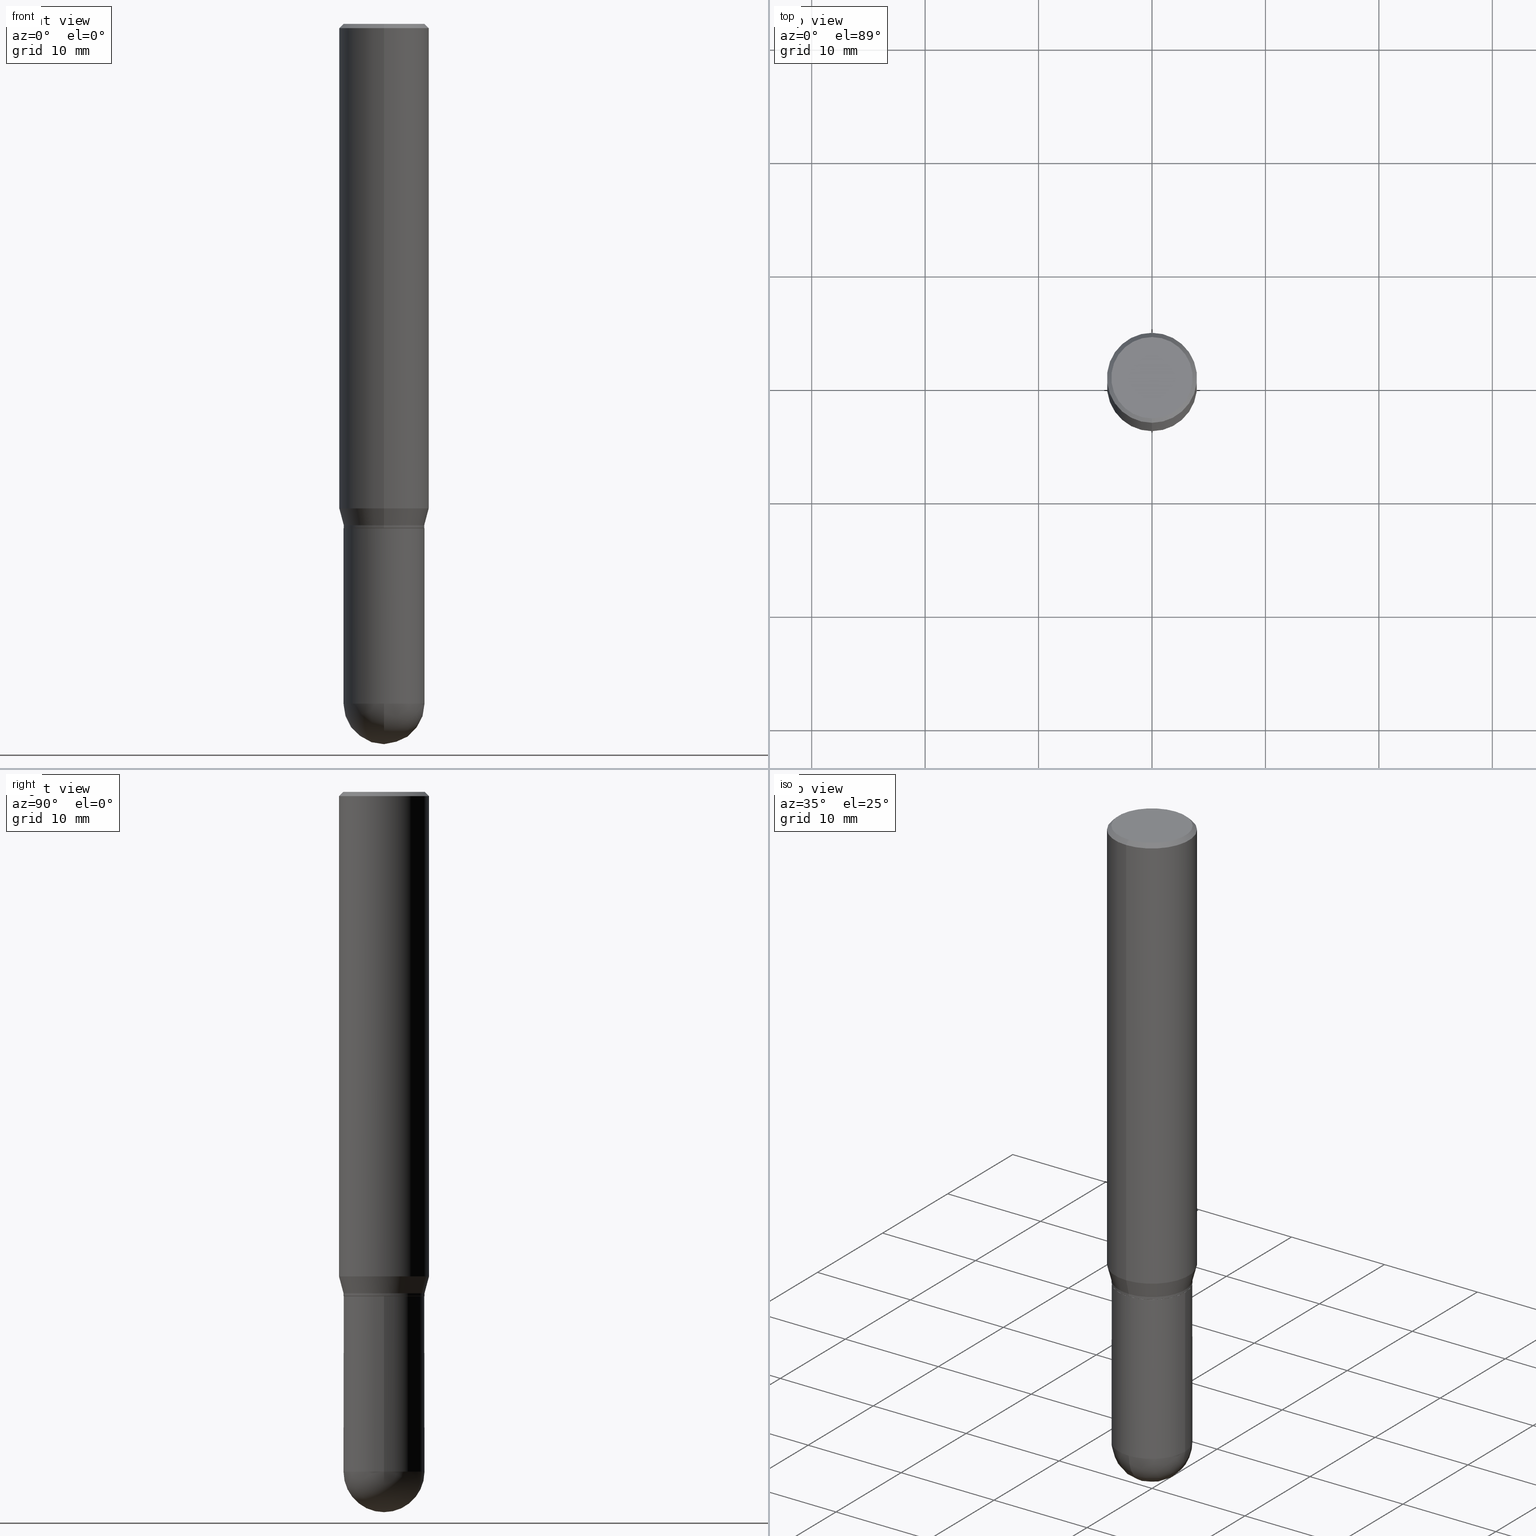
[diagram: canonical four-view strip — front | top / right | iso, engineering-drawing reading convention]
A machine part, canonical four-view strip (front | top / right | iso — engineering-drawing reading convention). The complete STEP part file that produces these views, byte-faithful:
ISO-10303-21;
HEADER;
FILE_DESCRIPTION (( 'STEP AP203' ),
    '1' );
FILE_NAME ('30336.STEP',
    '2024-03-08T15:22:05',
    ( '' ),
    ( '' ),
    'SwSTEP 2.0',
    'SolidWorks 2023',
    '' );
FILE_SCHEMA (( 'CONFIG_CONTROL_DESIGN' ));
ENDSEC;

DATA;
#1 = DIRECTION ( 'NONE',  ( -2.445468806185136597E-29, 3.491481338843145583E-15, 1.000000000000000000 ) ) ;
#2 = CARTESIAN_POINT ( 'NONE',  ( -1.130838019233645980E-45, 1.614692892681366548E-31, 4.624440648553888013E-17 ) ) ;
#3 = DIRECTION ( 'NONE',  ( -6.982962677686265133E-15, -1.000000000000000000, 3.496765431890256920E-15 ) ) ;
#4 = DIRECTION ( 'NONE',  ( 6.982962677686265133E-15, 1.000000000000000000, -3.496765431890256920E-15 ) ) ;
#5 = VERTEX_POINT ( 'NONE', #21 ) ;
#6 = AXIS2_PLACEMENT_3D ( 'NONE', #109, #380, #19 ) ;
#7 = EDGE_LOOP ( 'NONE', ( #476, #379, #26, #219 ) ) ;
#8 = DIRECTION ( 'NONE',  ( -2.445350919548012662E-29, 3.491650159217197762E-15, 1.000000000000000000 ) ) ;
#9 = DIRECTION ( 'NONE',  ( 2.438088387897960049E-29, -3.491481338843145188E-15, -1.000000000000000000 ) ) ;
#10 = DIRECTION ( 'NONE',  ( -6.982962677686265133E-15, -1.000000000000000000, 3.496765431890256920E-15 ) ) ;
#11 = CIRCLE ( 'NONE', #312, 0.1406000000000000305 ) ;
#12 = AXIS2_PLACEMENT_3D ( 'NONE', #504, #216, #428 ) ;
#13 = EDGE_LOOP ( 'NONE', ( #204, #456, #158, #462, #98 ) ) ;
#14 = COORDINATED_UNIVERSAL_TIME_OFFSET ( 5, 0, .BEHIND. ) ;
#15 = EDGE_CURVE ( 'NONE', #271, #255, #182, .T. ) ;
#16 = DIRECTION ( 'NONE',  ( 5.024295867788147587E-15, 0.7071067811865620056, 0.7071067811865330288 ) ) ;
#17 = AXIS2_PLACEMENT_3D ( 'NONE', #241, #198, #364 ) ;
#18 = ORIENTED_EDGE ( 'NONE', *, *, #247, .T. ) ;
#19 = DIRECTION ( 'NONE',  ( -6.982962677686266711E-15, -1.000000000000000000, 3.491650159217198551E-15 ) ) ;
#20 = DIRECTION ( 'NONE',  ( -6.982962677686265922E-15, -1.000000000000000000, 3.899854380677035588E-15 ) ) ;
#21 = CARTESIAN_POINT ( 'NONE',  ( -9.818045524826451268E-16, -0.1406000000000059702, -1.749499999999999833 ) ) ;
#22 = CONICAL_SURFACE ( 'NONE', #233, 0.1562500000000000000, 0.7853981633974485010 ) ;
#23 = EDGE_CURVE ( 'NONE', #416, #292, #442, .T. ) ;
#24 = DIRECTION ( 'NONE',  ( -4.937700262164631661E-15, -0.7071067811865571207, 0.7071067811865379138 ) ) ;
#25 = DIRECTION ( 'NONE',  ( -2.445350919548012662E-29, 3.491650159217197762E-15, 1.000000000000000000 ) ) ;
#26 = ORIENTED_EDGE ( 'NONE', *, *, #325, .T. ) ;
#27 = PERSON_AND_ORGANIZATION ( #210, #38 ) ;
#28 = DIRECTION ( 'NONE',  ( -2.445350919548012662E-29, 3.491650159217197762E-15, 1.000000000000000000 ) ) ;
#29 = ORIENTED_EDGE ( 'NONE', *, *, #301, .T. ) ;
#30 = ADVANCED_FACE ( 'NONE', ( #141 ), #32, .T. ) ;
#31 = DIRECTION ( 'NONE',  ( -2.445350919548012662E-29, 3.491650159217197762E-15, 1.000000000000000000 ) ) ;
#32 = CYLINDRICAL_SURFACE ( 'NONE', #287, 0.1562500000000000000 ) ;
#33 = AXIS2_PLACEMENT_3D ( 'NONE', #455, #291, #20 ) ;
#34 = CARTESIAN_POINT ( 'NONE',  ( 5.769839101313211634E-29, -8.237801070866517629E-15, -2.359399999999999942 ) ) ;
#35 = APPROVAL ( #191, 'UNSPECIFIED' ) ;
#36 = DIRECTION ( 'NONE',  ( -2.445350919548012662E-29, 3.491650159217197762E-15, 1.000000000000000000 ) ) ;
#37 = CARTESIAN_POINT ( 'NONE',  ( 0.000000000000000000, 0.000000000000000000, 0.000000000000000000 ) ) ;
#38 = ORGANIZATION ( 'UNSPECIFIED', 'UNSPECIFIED', '' ) ;
#39 = CARTESIAN_POINT ( 'NONE',  ( -9.783130711438031058E-16, -0.1401000000000061085, -1.749999999999999556 ) ) ;
#40 = CYLINDRICAL_SURFACE ( 'NONE', #454, 0.1406000000000000028 ) ;
#41 = EDGE_CURVE ( 'NONE', #416, #62, #432, .T. ) ;
#42 = DATE_AND_TIME ( #394, #316 ) ;
#43 = DIRECTION ( 'NONE',  ( -6.982962677686265133E-15, -1.000000000000000000, 3.885985766236507752E-15 ) ) ;
#44 = CARTESIAN_POINT ( 'NONE',  ( -1.130838019233645980E-45, 1.614692892681366548E-31, 4.624440648553888013E-17 ) ) ;
#45 = VERTEX_POINT ( 'NONE', #173 ) ;
#46 = AXIS2_PLACEMENT_3D ( 'NONE', #236, #485, #321 ) ;
#47 = DIRECTION ( 'NONE',  ( -7.105427357601001859E-15, -1.000000000000000000, 0.000000000000000000 ) ) ;
#48 = EDGE_CURVE ( 'NONE', #328, #292, #112, .T. ) ;
#49 = DIRECTION ( 'NONE',  ( -2.445350919548012662E-29, 3.491650159217197762E-15, 1.000000000000000000 ) ) ;
#50 = DIRECTION ( 'NONE',  ( -1.000000000000000000, 6.982962677686265922E-15, -4.876176775795935793E-29 ) ) ;
#51 = CIRCLE ( 'NONE', #366, 0.1412499999999999867 ) ;
#52 = ORIENTED_EDGE ( 'NONE', *, *, #41, .T. ) ;
#53 = DIMENSIONAL_EXPONENTS ( 1.000000000000000000, 0.000000000000000000, 0.000000000000000000, 0.000000000000000000, 0.000000000000000000, 0.000000000000000000, 0.000000000000000000 ) ;
#54 = APPROVAL_STATUS ( 'not_yet_approved' ) ;
#55 = LINE ( 'NONE', #140, #237 ) ;
#56 = ORIENTED_EDGE ( 'NONE', *, *, #48, .F. ) ;
#57 = PERSON_AND_ORGANIZATION_ROLE ( 'creator' ) ;
#58 = CARTESIAN_POINT ( 'NONE',  ( -1.020499077168515012E-15, -0.1412499999999999867, 5.394399914749680895E-16 ) ) ;
#59 = AXIS2_PLACEMENT_3D ( 'NONE', #279, #87, #47 ) ;
#60 = ORIENTED_EDGE ( 'NONE', *, *, #180, .F. ) ;
#61 = CC_DESIGN_PERSON_AND_ORGANIZATION_ASSIGNMENT ( #212, #105, ( #91 ) ) ;
#62 = VERTEX_POINT ( 'NONE', #317 ) ;
#63 = PERSON_AND_ORGANIZATION ( #210, #38 ) ;
#64 = ORIENTED_EDGE ( 'NONE', *, *, #498, .T. ) ;
#65 = EDGE_CURVE ( 'NONE', #187, #62, #363, .T. ) ;
#66 = DIRECTION ( 'NONE',  ( 0.000000000000000000, 0.000000000000000000, 1.000000000000000000 ) ) ;
#67 = LINE ( 'NONE', #143, #293 ) ;
#68 = ORIENTED_EDGE ( 'NONE', *, *, #15, .T. ) ;
#69 =( GEOMETRIC_REPRESENTATION_CONTEXT ( 3 ) GLOBAL_UNCERTAINTY_ASSIGNED_CONTEXT ( ( #71 ) ) GLOBAL_UNIT_ASSIGNED_CONTEXT ( ( #426, #254, #248 ) ) REPRESENTATION_CONTEXT ( 'NONE', 'WORKASPACE' ) );
#70 = ADVANCED_FACE ( 'NONE', ( #388 ), #512, .T. ) ;
#71 = UNCERTAINTY_MEASURE_WITH_UNIT (LENGTH_MEASURE( 1.000000000000000082E-05 ), #426, 'distance_accuracy_value', 'NONE');
#72 = CARTESIAN_POINT ( 'NONE',  ( 5.769839101313211634E-29, -8.237801070866517629E-15, -2.359399999999999942 ) ) ;
#73 = DIRECTION ( 'NONE',  ( -6.982962677686265133E-15, -1.000000000000000000, 3.491650159217197762E-15 ) ) ;
#74 = APPROVAL_PERSON_ORGANIZATION ( #348, #35, #435 ) ;
#75 = AXIS2_PLACEMENT_3D ( 'NONE', #37, #351, #155 ) ;
#76 = DIRECTION ( 'NONE',  ( -2.445350919548012382E-29, 3.491650159217197762E-15, 1.000000000000000000 ) ) ;
#77 = DIRECTION ( 'NONE',  ( -2.445350919548012662E-29, 3.491650159217197762E-15, 1.000000000000000000 ) ) ;
#78 = DIRECTION ( 'NONE',  ( 1.000000000000000000, -6.982962677686268288E-15, 4.876176775795936353E-29 ) ) ;
#79 = ADVANCED_FACE ( 'NONE', ( #400 ), #22, .T. ) ;
#80 = AXIS2_PLACEMENT_3D ( 'NONE', #424, #25, #110 ) ;
#81 = ORIENTED_EDGE ( 'NONE', *, *, #414, .T. ) ;
#82 = DIRECTION ( 'NONE',  ( -2.445350919548012662E-29, 3.491650159217197762E-15, 1.000000000000000000 ) ) ;
#83 = ORIENTED_EDGE ( 'NONE', *, *, #301, .F. ) ;
#84 = CARTESIAN_POINT ( 'NONE',  ( 4.278141433749249308E-29, -6.108641953550488047E-15, -1.749500000000000277 ) ) ;
#85 = ORIENTED_EDGE ( 'NONE', *, *, #443, .T. ) ;
#86 = ADVANCED_FACE ( 'NONE', ( #161 ), #265, .T. ) ;
#87 = DIRECTION ( 'NONE',  ( -1.000000000000000000, 7.105427357601001070E-15, -4.926315508542082329E-29 ) ) ;
#88 = CARTESIAN_POINT ( 'NONE',  ( 3.668026379322007538E-31, -5.237475238825779930E-17, -0.01499999999999995261 ) ) ;
#89 = CONICAL_SURFACE ( 'NONE', #477, 0.1401000000000000023, 0.7853981633974653764 ) ;
#90 = DIRECTION ( 'NONE',  ( -4.851104656540965064E-15, -0.7071067811865501263, -0.7071067811865449082 ) ) ;
#91 = PRODUCT_DEFINITION_FORMATION_WITH_SPECIFIED_SOURCE ( 'ANY', '', #468, .NOT_KNOWN. ) ;
#92 = AXIS2_PLACEMENT_3D ( 'NONE', #464, #285, #452 ) ;
#93 = ADVANCED_FACE ( 'NONE', ( #479 ), #266, .T. ) ;
#94 = ORIENTED_EDGE ( 'NONE', *, *, #116, .T. ) ;
#95 = ADVANCED_FACE ( 'NONE', ( #396 ), #40, .T. ) ;
#96 = CC_DESIGN_APPROVAL ( #35, ( #246 ) ) ;
#97 = AXIS2_PLACEMENT_3D ( 'NONE', #238, #9, #50 ) ;
#98 = ORIENTED_EDGE ( 'NONE', *, *, #23, .T. ) ;
#99 = EDGE_CURVE ( 'NONE', #193, #138, #51, .T. ) ;
#100 = CIRCLE ( 'NONE', #166, 0.1401000000000000023 ) ;
#101 = CARTESIAN_POINT ( 'NONE',  ( 1.110223024625197561E-15, 0.1562499999999999445, -0.01500000000000049905 ) ) ;
#102 = EDGE_LOOP ( 'NONE', ( #369, #295, #64, #115 ) ) ;
#103 = PERSON_AND_ORGANIZATION_ROLE ( 'creator' ) ;
#104 = EDGE_LOOP ( 'NONE', ( #202, #440, #118, #480 ) ) ;
#105 = PERSON_AND_ORGANIZATION_ROLE ( 'design_supplier' ) ;
#106 = AXIS2_PLACEMENT_3D ( 'NONE', #228, #395, #387 ) ;
#107 = LOCAL_TIME ( 10, 22, 5.000000000000000000, #14 ) ;
#108 = ORIENTED_EDGE ( 'NONE', *, *, #458, .T. ) ;
#109 = CARTESIAN_POINT ( 'NONE',  ( 0.000000000000000000, 0.000000000000000000, 0.000000000000000000 ) ) ;
#110 = DIRECTION ( 'NONE',  ( -6.982962677686265133E-15, -1.000000000000000000, 3.885985766236507752E-15 ) ) ;
#111 = ORIENTED_EDGE ( 'NONE', *, *, #147, .F. ) ;
#112 = CIRCLE ( 'NONE', #399, 0.1406000000000000860 ) ;
#113 = PERSON_AND_ORGANIZATION ( #210, #38 ) ;
#114 = LINE ( 'NONE', #258, #484 ) ;
#115 = ORIENTED_EDGE ( 'NONE', *, *, #360, .F. ) ;
#116 = EDGE_CURVE ( 'NONE', #271, #224, #273, .T. ) ;
#117 = CARTESIAN_POINT ( 'NONE',  ( -0.1406000000000000583, -6.174923620442310269E-15, -2.359399999999999942 ) ) ;
#118 = ORIENTED_EDGE ( 'NONE', *, *, #116, .F. ) ;
#119 = APPLICATION_CONTEXT ( 'configuration controlled 3d designs of mechanical parts and assemblies' ) ;
#120 = VECTOR ( 'NONE', #90, 39.37007874015748143 ) ;
#121 = CARTESIAN_POINT ( 'NONE',  ( 4.254910600013542582E-29, -6.075471277037923405E-15, -1.739999999999999991 ) ) ;
#122 = EDGE_CURVE ( 'NONE', #45, #410, #481, .T. ) ;
#123 = FACE_OUTER_BOUND ( 'NONE', #231, .T. ) ;
#124 = DIRECTION ( 'NONE',  ( 6.982962677686265133E-15, 1.000000000000000000, -3.496765431890256920E-15 ) ) ;
#125 = DIRECTION ( 'NONE',  ( -6.982962677686265922E-15, -1.000000000000000000, 3.491650159217197762E-15 ) ) ;
#126 = DIRECTION ( 'NONE',  ( -6.982962677686265922E-15, -1.000000000000000000, 3.491650159217198157E-15 ) ) ;
#127 = AXIS2_PLACEMENT_3D ( 'NONE', #121, #82, #436 ) ;
#128 = ORIENTED_EDGE ( 'NONE', *, *, #491, .T. ) ;
#129 = DIRECTION ( 'NONE',  ( 1.000000000000000000, -6.982962677686270655E-15, 0.000000000000000000 ) ) ;
#130 = DIRECTION ( 'NONE',  ( -2.445468806185136597E-29, 3.491481338843145583E-15, 1.000000000000000000 ) ) ;
#131 = ORIENTED_EDGE ( 'NONE', *, *, #23, .F. ) ;
#132 = CC_DESIGN_DATE_AND_TIME_ASSIGNMENT ( #42, #397, ( #246 ) ) ;
#133 = AXIS2_PLACEMENT_3D ( 'NONE', #406, #49, #10 ) ;
#134 = ORIENTED_EDGE ( 'NONE', *, *, #360, .T. ) ;
#135 = DATE_AND_TIME ( #413, #374 ) ;
#136 = APPROVAL_DATE_TIME ( #139, #169 ) ;
#137 = DIRECTION ( 'NONE',  ( -2.445468806185136597E-29, 3.491481338843145583E-15, 1.000000000000000000 ) ) ;
#138 = VERTEX_POINT ( 'NONE', #421 ) ;
#139 = DATE_AND_TIME ( #423, #107 ) ;
#140 = CARTESIAN_POINT ( 'NONE',  ( 1.110223024625156343E-15, 0.1562500000000000000, -5.455703373776871627E-16 ) ) ;
#141 = FACE_OUTER_BOUND ( 'NONE', #289, .T. ) ;
#142 =( LENGTH_UNIT ( ) NAMED_UNIT ( * ) SI_UNIT ( $, .METRE. ) );
#143 = CARTESIAN_POINT ( 'NONE',  ( 9.990230864787428877E-16, 0.1405999999999938410, -1.740000000000000657 ) ) ;
#144 = ORIENTED_EDGE ( 'NONE', *, *, #450, .T. ) ;
#145 = MECHANICAL_CONTEXT ( 'NONE', #119, 'mechanical' ) ;
#146 = ORIENTED_EDGE ( 'NONE', *, *, #65, .F. ) ;
#147 = EDGE_CURVE ( 'NONE', #410, #45, #100, .T. ) ;
#148 = FACE_OUTER_BOUND ( 'NONE', #326, .T. ) ;
#149 = ORIENTED_EDGE ( 'NONE', *, *, #389, .F. ) ;
#150 = COORDINATED_UNIVERSAL_TIME_OFFSET ( 5, 0, .BEHIND. ) ;
#151 = DIRECTION ( 'NONE',  ( -2.445350919548012662E-29, 3.491650159217197762E-15, 1.000000000000000000 ) ) ;
#152 = CARTESIAN_POINT ( 'NONE',  ( 5.757815463287349061E-29, -8.255019604862529009E-15, -2.359399999999999942 ) ) ;
#153 = ADVANCED_FACE ( 'NONE', ( #372 ), #256, .T. ) ;
#154 = CARTESIAN_POINT ( 'NONE',  ( 0.1406000000000000583, -8.155751259403701439E-15, -2.359399999999999942 ) ) ;
#155 = DIRECTION ( 'NONE',  ( -6.982962677686265133E-15, -1.000000000000000000, 3.491650159217197762E-15 ) ) ;
#156 = CARTESIAN_POINT ( 'NONE',  ( 4.279364109209022580E-29, -6.110387778630096380E-15, -1.750000000000000222 ) ) ;
#157 = DIRECTION ( 'NONE',  ( -2.445350919548012662E-29, 3.491650159217197762E-15, 1.000000000000000000 ) ) ;
#158 = ORIENTED_EDGE ( 'NONE', *, *, #314, .F. ) ;
#159 = DIRECTION ( 'NONE',  ( -2.445350919548012662E-29, 3.491650159217197762E-15, 1.000000000000000000 ) ) ;
#160 = CC_DESIGN_SECURITY_CLASSIFICATION ( #246, ( #91 ) ) ;
#161 = FACE_OUTER_BOUND ( 'NONE', #249, .T. ) ;
#162 = CIRCLE ( 'NONE', #409, 0.1406000000000000028 ) ;
#163 = CARTESIAN_POINT ( 'NONE',  ( 5.757815463287349061E-29, -8.255019604862529009E-15, -2.359399999999999942 ) ) ;
#164 = EDGE_CURVE ( 'NONE', #286, #344, #240, .T. ) ;
#165 = ORIENTED_EDGE ( 'NONE', *, *, #475, .F. ) ;
#166 = AXIS2_PLACEMENT_3D ( 'NONE', #503, #31, #251 ) ;
#167 = LINE ( 'NONE', #451, #383 ) ;
#168 = AXIS2_PLACEMENT_3D ( 'NONE', #175, #28, #505 ) ;
#169 = APPROVAL ( #327, 'UNSPECIFIED' ) ;
#170 = CARTESIAN_POINT ( 'NONE',  ( 4.254910600013542582E-29, -6.075471277037923405E-15, -1.739999999999999991 ) ) ;
#171 = EDGE_LOOP ( 'NONE', ( #94, #494, #165, #274 ) ) ;
#172 = EDGE_CURVE ( 'NONE', #5, #271, #378, .T. ) ;
#173 = CARTESIAN_POINT ( 'NONE',  ( 9.972467296393428329E-16, 0.1400999999999938961, -1.750000000000000666 ) ) ;
#174 = LENGTH_MEASURE_WITH_UNIT ( LENGTH_MEASURE( 0.02539999999999999897 ), #142 );
#175 = CARTESIAN_POINT ( 'NONE',  ( 0.000000000000000000, 0.000000000000000000, 0.000000000000000000 ) ) ;
#176 = ORIENTED_EDGE ( 'NONE', *, *, #333, .T. ) ;
#177 = SECURITY_CLASSIFICATION_LEVEL ( 'unclassified' ) ;
#178 = ORIENTED_EDGE ( 'NONE', *, *, #498, .F. ) ;
#179 = COORDINATED_UNIVERSAL_TIME_OFFSET ( 5, 0, .BEHIND. ) ;
#180 = EDGE_CURVE ( 'NONE', #5, #425, #270, .T. ) ;
#181 = VECTOR ( 'NONE', #151, 39.37007874015748143 ) ;
#182 = LINE ( 'NONE', #467, #433 ) ;
#183 = CALENDAR_DATE ( 2024, 8, 3 ) ;
#184 = CARTESIAN_POINT ( 'NONE',  ( -9.818045524826885142E-16, -0.1405999999999999195, 4.909260123859378128E-16 ) ) ;
#185 = DIRECTION ( 'NONE',  ( -2.445468806185136877E-29, 3.491481338843145188E-15, 1.000000000000000000 ) ) ;
#186 = CARTESIAN_POINT ( 'NONE',  ( 4.279570410823989044E-29, -6.110092342975505460E-15, -1.750000000000000222 ) ) ;
#187 = VERTEX_POINT ( 'NONE', #499 ) ;
#188 = FACE_OUTER_BOUND ( 'NONE', #234, .T. ) ;
#189 = DIRECTION ( 'NONE',  ( 1.000000000000000000, -6.982962677686265922E-15, 4.883557194083112340E-29 ) ) ;
#190 = APPROVAL_PERSON_ORGANIZATION ( #113, #169, #488 ) ;
#191 = APPROVAL_STATUS ( 'not_yet_approved' ) ;
#192 = CARTESIAN_POINT ( 'NONE',  ( 3.668026379322007538E-31, -5.237475238825779930E-17, -0.01499999999999995261 ) ) ;
#193 = VERTEX_POINT ( 'NONE', #58 ) ;
#194 = EDGE_CURVE ( 'NONE', #224, #263, #67, .T. ) ;
#195 = DIRECTION ( 'NONE',  ( 1.000000000000000000, -6.982962677686270655E-15, 0.000000000000000000 ) ) ;
#196 = CIRCLE ( 'NONE', #106, 0.1405999999999999195 ) ;
#197 = ORIENTED_EDGE ( 'NONE', *, *, #325, .F. ) ;
#198 = DIRECTION ( 'NONE',  ( 2.445350919548012382E-29, -3.491650159217197762E-15, -1.000000000000000000 ) ) ;
#199 = VECTOR ( 'NONE', #185, 39.37007874015748143 ) ;
#200 = EDGE_CURVE ( 'NONE', #292, #361, #11, .T. ) ;
#201 = CIRCLE ( 'NONE', #489, 0.1406000000000000305 ) ;
#202 = ORIENTED_EDGE ( 'NONE', *, *, #180, .T. ) ;
#203 = AXIS2_PLACEMENT_3D ( 'NONE', #152, #391, #444 ) ;
#204 = ORIENTED_EDGE ( 'NONE', *, *, #200, .T. ) ;
#205 = APPROVAL_ROLE ( '' ) ;
#206 = CC_DESIGN_PERSON_AND_ORGANIZATION_ASSIGNMENT ( #27, #57, ( #91 ) ) ;
#207 = APPLICATION_CONTEXT ( 'configuration controlled 3d designs of mechanical parts and assemblies' ) ;
#208 = ORIENTED_EDGE ( 'NONE', *, *, #239, .T. ) ;
#209 = LOCAL_TIME ( 10, 22, 5.000000000000000000, #150 ) ;
#210 = PERSON ( 'UNSPECIFIED', 'UNSPECIFIED', 'UNSPECIFIED', ('UNSPECIFIED'), ('UNSPECIFIED'), ('UNSPECIFIED') ) ;
#211 = CIRCLE ( 'NONE', #349, 0.1405999999999999195 ) ;
#212 = PERSON_AND_ORGANIZATION ( #210, #38 ) ;
#213 = CARTESIAN_POINT ( 'NONE',  ( 5.769839101313211634E-29, -8.237801070866517629E-15, -2.359399999999999942 ) ) ;
#214 = ORIENTED_EDGE ( 'NONE', *, *, #491, .F. ) ;
#215 = DIRECTION ( 'NONE',  ( 1.000000000000000000, -6.982962677686268288E-15, 4.876176775795936353E-29 ) ) ;
#216 = DIRECTION ( 'NONE',  ( -2.445468806185136597E-29, 3.491481338843145583E-15, 1.000000000000000000 ) ) ;
#217 = DATE_AND_TIME ( #417, #446 ) ;
#218 = DIRECTION ( 'NONE',  ( 1.839019923739597160E-15, 0.2588190451025245142, 0.9659258262890673130 ) ) ;
#219 = ORIENTED_EDGE ( 'NONE', *, *, #164, .T. ) ;
#220 = CARTESIAN_POINT ( 'NONE',  ( 1.110223024625197561E-15, 0.1562499999999941436, -1.681593404861547514 ) ) ;
#221 = DIRECTION ( 'NONE',  ( -2.445350919548012662E-29, 3.491650159217197762E-15, 1.000000000000000000 ) ) ;
#222 = DATE_AND_TIME ( #183, #209 ) ;
#223 = CARTESIAN_POINT ( 'NONE',  ( -0.1406000000000000028, 9.990230864787008809E-16, -6.916022736898399140E-30 ) ) ;
#224 = VERTEX_POINT ( 'NONE', #343 ) ;
#225 = CARTESIAN_POINT ( 'NONE',  ( -1.091087918388478779E-15, -0.1562500000000000833, -0.01499999999999940617 ) ) ;
#226 = DIRECTION ( 'NONE',  ( 2.445350919548012662E-29, -3.491650159217197762E-15, -1.000000000000000000 ) ) ;
#227 = MANIFOLD_SOLID_BREP ( 'Body-Move/Copy2[1]', #318 ) ;
#228 = CARTESIAN_POINT ( 'NONE',  ( 4.254910600013542582E-29, -6.075471277037923405E-15, -1.739999999999999991 ) ) ;
#229 = AXIS2_PLACEMENT_3D ( 'NONE', #299, #76, #125 ) ;
#230 = ADVANCED_FACE ( 'NONE', ( #288 ), #294, .T. ) ;
#231 = EDGE_LOOP ( 'NONE', ( #376, #18, #60, #178 ) ) ;
#232 = DIRECTION ( 'NONE',  ( -6.982962677686265922E-15, -1.000000000000000000, 3.899854380677035588E-15 ) ) ;
#233 = AXIS2_PLACEMENT_3D ( 'NONE', #88, #226, #4 ) ;
#234 = EDGE_LOOP ( 'NONE', ( #331, #401, #131, #315 ) ) ;
#235 = LINE ( 'NONE', #264, #365 ) ;
#236 = CARTESIAN_POINT ( 'NONE',  ( 4.112085978884057268E-29, -5.871535879823409448E-15, -1.681593404861546848 ) ) ;
#237 = VECTOR ( 'NONE', #330, 39.37007874015748143 ) ;
#238 = CARTESIAN_POINT ( 'NONE',  ( 9.818045524827319015E-16, 0.1405999999999938965, -1.750000000000000666 ) ) ;
#239 = EDGE_CURVE ( 'NONE', #255, #344, #493, .T. ) ;
#240 = CIRCLE ( 'NONE', #92, 0.1562500000000000000 ) ;
#241 = CARTESIAN_POINT ( 'NONE',  ( 9.863434782231850151E-16, 0.1412499999999999867, -4.700733817466596737E-16 ) ) ;
#242 = EDGE_LOOP ( 'NONE', ( #56, #252, #453, #357 ) ) ;
#243 = CONICAL_SURFACE ( 'NONE', #127, 0.1405999999999999195, 0.2617993877991497964 ) ;
#244 = PRODUCT_DEFINITION_SHAPE ( 'NONE', 'NONE',  #352 ) ;
#245 = ORIENTED_EDGE ( 'NONE', *, *, #389, .T. ) ;
#246 = SECURITY_CLASSIFICATION ( '', '', #177 ) ;
#247 = EDGE_CURVE ( 'NONE', #45, #425, #114, .T. ) ;
#248 =( NAMED_UNIT ( * ) SI_UNIT ( $, .STERADIAN. ) SOLID_ANGLE_UNIT ( ) );
#249 = EDGE_LOOP ( 'NONE', ( #83, #128, #208, #347 ) ) ;
#250 = CARTESIAN_POINT ( 'NONE',  ( 0.000000000000000000, 0.000000000000000000, 0.000000000000000000 ) ) ;
#251 = DIRECTION ( 'NONE',  ( -6.982962677686265922E-15, -1.000000000000000000, 3.899854380677035588E-15 ) ) ;
#252 = ORIENTED_EDGE ( 'NONE', *, *, #463, .T. ) ;
#253 = AXIS2_PLACEMENT_3D ( 'NONE', #44, #159, #262 ) ;
#254 =( NAMED_UNIT ( * ) PLANE_ANGLE_UNIT ( ) SI_UNIT ( $, .RADIAN. ) );
#255 = VERTEX_POINT ( 'NONE', #427 ) ;
#256 = CYLINDRICAL_SURFACE ( 'NONE', #307, 0.1406000000000000028 ) ;
#257 = ORIENTED_EDGE ( 'NONE', *, *, #443, .F. ) ;
#258 = CARTESIAN_POINT ( 'NONE',  ( 9.954703727999429753E-16, 0.1400999999999938961, -1.750000000000000666 ) ) ;
#259 = ORIENTED_EDGE ( 'NONE', *, *, #239, .F. ) ;
#260 = DESIGN_CONTEXT ( 'detailed design', #207, 'design' ) ;
#261 = AXIS2_PLACEMENT_3D ( 'NONE', #72, #398, #195 ) ;
#262 = DIRECTION ( 'NONE',  ( -6.982962677686265922E-15, -1.000000000000000000, 3.491650159217198157E-15 ) ) ;
#263 = VERTEX_POINT ( 'NONE', #220 ) ;
#264 = CARTESIAN_POINT ( 'NONE',  ( 1.091087918388479371E-15, 0.1562499999999999445, -0.01500000000000049905 ) ) ;
#265 = CYLINDRICAL_SURFACE ( 'NONE', #75, 0.1562500000000000000 ) ;
#266 = CONICAL_SURFACE ( 'NONE', #334, 0.1562500000000000000, 0.7853981633974485010 ) ;
#267 = CARTESIAN_POINT ( 'NONE',  ( 4.254910600013542582E-29, -6.075471277037923405E-15, -1.739999999999999991 ) ) ;
#268 = CARTESIAN_POINT ( 'NONE',  ( 0.000000000000000000, 0.000000000000000000, 0.000000000000000000 ) ) ;
#269 = DIRECTION ( 'NONE',  ( -2.445350919548012662E-29, 3.491650159217197762E-15, 1.000000000000000000 ) ) ;
#270 = CIRCLE ( 'NONE', #80, 0.1405999999999999195 ) ;
#271 = VERTEX_POINT ( 'NONE', #415 ) ;
#272 = DIRECTION ( 'NONE',  ( 4.937700262164548831E-15, 0.7071067811865452413, -0.7071067811865497932 ) ) ;
#273 = CIRCLE ( 'NONE', #407, 0.1405999999999999195 ) ;
#274 = ORIENTED_EDGE ( 'NONE', *, *, #15, .F. ) ;
#275 = ORIENTED_EDGE ( 'NONE', *, *, #475, .T. ) ;
#276 = CC_DESIGN_DATE_AND_TIME_ASSIGNMENT ( #135, #457, ( #352 ) ) ;
#277 = AXIS2_PLACEMENT_3D ( 'NONE', #267, #77, #305 ) ;
#278 = ADVANCED_BREP_SHAPE_REPRESENTATION ( '30336', ( #227, #403, #445 ), #69 ) ;
#279 = CARTESIAN_POINT ( 'NONE',  ( 5.757815463287349061E-29, -8.255019604862529009E-15, -2.359399999999999942 ) ) ;
#280 = FACE_OUTER_BOUND ( 'NONE', #422, .T. ) ;
#281 = VERTEX_POINT ( 'NONE', #385 ) ;
#282 = CIRCLE ( 'NONE', #46, 0.1562500000000000000 ) ;
#283 = PERSON_AND_ORGANIZATION ( #210, #38 ) ;
#284 = APPROVAL_PERSON_ORGANIZATION ( #283, #469, #205 ) ;
#285 = DIRECTION ( 'NONE',  ( -2.445350919548012662E-29, 3.491650159217197762E-15, 1.000000000000000000 ) ) ;
#286 = VERTEX_POINT ( 'NONE', #101 ) ;
#287 = AXIS2_PLACEMENT_3D ( 'NONE', #500, #221, #73 ) ;
#288 = FACE_OUTER_BOUND ( 'NONE', #342, .T. ) ;
#289 = EDGE_LOOP ( 'NONE', ( #275, #29, #149, #259 ) ) ;
#290 = CC_DESIGN_PERSON_AND_ORGANIZATION_ASSIGNMENT ( #335, #296, ( #468 ) ) ;
#291 = DIRECTION ( 'NONE',  ( -2.445350919548012662E-29, 3.491650159217197762E-15, 1.000000000000000000 ) ) ;
#292 = VERTEX_POINT ( 'NONE', #375 ) ;
#293 = VECTOR ( 'NONE', #218, 39.37007874015748143 ) ;
#294 = CYLINDRICAL_SURFACE ( 'NONE', #168, 0.1405999999999999195 ) ;
#295 = ORIENTED_EDGE ( 'NONE', *, *, #122, .T. ) ;
#296 = PERSON_AND_ORGANIZATION_ROLE ( 'design_owner' ) ;
#297 = DIRECTION ( 'NONE',  ( -2.445468806185136597E-29, 3.491481338843145583E-15, 1.000000000000000000 ) ) ;
#298 = ORIENTED_EDGE ( 'NONE', *, *, #122, .F. ) ;
#299 = CARTESIAN_POINT ( 'NONE',  ( 4.279364109209022580E-29, -6.110387778630096380E-15, -1.750000000000000222 ) ) ;
#300 = ORIENTED_EDGE ( 'NONE', *, *, #65, .T. ) ;
#301 = EDGE_CURVE ( 'NONE', #263, #286, #55, .T. ) ;
#302 = APPROVAL_DATE_TIME ( #222, #35 ) ;
#303 = CIRCLE ( 'NONE', #253, 0.1412499999999999867 ) ;
#304 = LINE ( 'NONE', #223, #460 ) ;
#305 = DIRECTION ( 'NONE',  ( -6.982962677686266711E-15, -1.000000000000000000, 3.885985766236507752E-15 ) ) ;
#306 = CARTESIAN_POINT ( 'NONE',  ( 3.668026379322007538E-31, -5.237475238825779930E-17, -0.01499999999999995261 ) ) ;
#307 = AXIS2_PLACEMENT_3D ( 'NONE', #337, #297, #215 ) ;
#308 = CC_DESIGN_PERSON_AND_ORGANIZATION_ASSIGNMENT ( #310, #508, ( #246 ) ) ;
#309 = CARTESIAN_POINT ( 'NONE',  ( 4.279364109209022580E-29, -6.110387778630096380E-15, -1.750000000000000222 ) ) ;
#310 = PERSON_AND_ORGANIZATION ( #210, #38 ) ;
#311 = DIRECTION ( 'NONE',  ( -2.445468806185136597E-29, 3.491481338843145583E-15, 1.000000000000000000 ) ) ;
#312 = AXIS2_PLACEMENT_3D ( 'NONE', #213, #137, #381 ) ;
#313 = DIRECTION ( 'NONE',  ( 6.982962677686266711E-15, 1.000000000000000000, 0.000000000000000000 ) ) ;
#314 = EDGE_CURVE ( 'NONE', #62, #187, #162, .T. ) ;
#315 = ORIENTED_EDGE ( 'NONE', *, *, #450, .F. ) ;
#316 = LOCAL_TIME ( 10, 22, 5.000000000000000000, #473 ) ;
#317 = CARTESIAN_POINT ( 'NONE',  ( 0.1406000000000000028, -7.091896895458194566E-15, -1.750000000000000222 ) ) ;
#318 = CLOSED_SHELL ( 'NONE', ( #95, #70, #487, #408, #153 ) ) ;
#319 = PRODUCT_RELATED_PRODUCT_CATEGORY ( 'detail', '', ( #468 ) ) ;
#320 = ORIENTED_EDGE ( 'NONE', *, *, #172, .T. ) ;
#321 = DIRECTION ( 'NONE',  ( -6.982962677686265133E-15, -1.000000000000000000, 3.496765431890256920E-15 ) ) ;
#322 = VECTOR ( 'NONE', #341, 39.37007874015748143 ) ;
#323 = CC_DESIGN_APPROVAL ( #169, ( #352 ) ) ;
#324 = CARTESIAN_POINT ( 'NONE',  ( -1.071952812151801215E-15, -0.1562500000000000833, -0.01499999999999940617 ) ) ;
#325 = EDGE_CURVE ( 'NONE', #138, #286, #235, .T. ) ;
#326 = EDGE_LOOP ( 'NONE', ( #111, #298 ) ) ;
#327 = APPROVAL_STATUS ( 'not_yet_approved' ) ;
#328 = VERTEX_POINT ( 'NONE', #470 ) ;
#329 = AXIS2_PLACEMENT_3D ( 'NONE', #350, #511, #439 ) ;
#330 = DIRECTION ( 'NONE',  ( -2.445350919548012662E-29, 3.491650159217197762E-15, 1.000000000000000000 ) ) ;
#331 = ORIENTED_EDGE ( 'NONE', *, *, #463, .F. ) ;
#332 = CC_DESIGN_APPROVAL ( #469, ( #91 ) ) ;
#333 = EDGE_CURVE ( 'NONE', #361, #281, #510, .T. ) ;
#334 = AXIS2_PLACEMENT_3D ( 'NONE', #306, #472, #124 ) ;
#335 = PERSON_AND_ORGANIZATION ( #210, #38 ) ;
#336 = ORIENTED_EDGE ( 'NONE', *, *, #314, .T. ) ;
#337 = CARTESIAN_POINT ( 'NONE',  ( 0.000000000000000000, 0.000000000000000000, 0.000000000000000000 ) ) ;
#338 = ORIENTED_EDGE ( 'NONE', *, *, #99, .T. ) ;
#339 = CIRCLE ( 'NONE', #438, 0.1562500000000000000 ) ;
#340 = APPROVAL_DATE_TIME ( #217, #469 ) ;
#341 = DIRECTION ( 'NONE',  ( -2.445350919548012662E-29, 3.491650159217197762E-15, 1.000000000000000000 ) ) ;
#342 = EDGE_LOOP ( 'NONE', ( #382, #134, #320, #257 ) ) ;
#343 = CARTESIAN_POINT ( 'NONE',  ( 1.054623055551970126E-15, 0.1405999999999938410, -1.740000000000000657 ) ) ;
#344 = VERTEX_POINT ( 'NONE', #225 ) ;
#345 = ADVANCED_FACE ( 'NONE', ( #123 ), #89, .T. ) ;
#346 = DIRECTION ( 'NONE',  ( -2.445350919548012662E-29, 3.491650159217197762E-15, 1.000000000000000000 ) ) ;
#347 = ORIENTED_EDGE ( 'NONE', *, *, #164, .F. ) ;
#348 = PERSON_AND_ORGANIZATION ( #210, #38 ) ;
#349 = AXIS2_PLACEMENT_3D ( 'NONE', #84, #434, #43 ) ;
#350 = CARTESIAN_POINT ( 'NONE',  ( 5.757815463287349061E-29, -8.255019604862529009E-15, -2.359399999999999942 ) ) ;
#351 = DIRECTION ( 'NONE',  ( -2.445350919548012662E-29, 3.491650159217197762E-15, 1.000000000000000000 ) ) ;
#352 = PRODUCT_DEFINITION ( 'UNKNOWN', '', #91, #260 ) ;
#353 = SHAPE_DEFINITION_REPRESENTATION ( #244, #278 ) ;
#354 = FACE_OUTER_BOUND ( 'NONE', #102, .T. ) ;
#355 = FACE_OUTER_BOUND ( 'NONE', #171, .T. ) ;
#356 = DIRECTION ( 'NONE',  ( 1.000000000000000000, -6.982962677686265133E-15, 0.000000000000000000 ) ) ;
#357 = ORIENTED_EDGE ( 'NONE', *, *, #200, .F. ) ;
#358 = PLANE ( 'NONE',  #229 ) ;
#359 = CONICAL_SURFACE ( 'NONE', #393, 0.1401000000000000023, 0.7853981633974653764 ) ;
#360 = EDGE_CURVE ( 'NONE', #425, #5, #211, .T. ) ;
#361 = VERTEX_POINT ( 'NONE', #117 ) ;
#362 = LINE ( 'NONE', #324, #120 ) ;
#363 = CIRCLE ( 'NONE', #495, 0.1406000000000000028 ) ;
#364 = DIRECTION ( 'NONE',  ( 6.982962677686265922E-15, 1.000000000000000000, -3.491650159217197762E-15 ) ) ;
#365 = VECTOR ( 'NONE', #272, 39.37007874015748143 ) ;
#366 = AXIS2_PLACEMENT_3D ( 'NONE', #2, #157, #126 ) ;
#367 = DIRECTION ( 'NONE',  ( 1.000000000000000000, 0.000000000000000000, 0.000000000000000000 ) ) ;
#368 = EDGE_CURVE ( 'NONE', #361, #187, #304, .T. ) ;
#369 = ORIENTED_EDGE ( 'NONE', *, *, #247, .F. ) ;
#370 = COORDINATED_UNIVERSAL_TIME_OFFSET ( 5, 0, .BEHIND. ) ;
#371 = DIRECTION ( 'NONE',  ( -6.982962677686266711E-15, -1.000000000000000000, 3.885985766236507752E-15 ) ) ;
#372 = FACE_OUTER_BOUND ( 'NONE', #465, .T. ) ;
#373 = EDGE_CURVE ( 'NONE', #425, #224, #509, .T. ) ;
#374 = LOCAL_TIME ( 10, 22, 5.000000000000000000, #179 ) ;
#375 = CARTESIAN_POINT ( 'NONE',  ( 9.818045524827470871E-16, 0.1405999999999918426, -2.359400000000000386 ) ) ;
#376 = ORIENTED_EDGE ( 'NONE', *, *, #147, .T. ) ;
#377 = VECTOR ( 'NONE', #418, 39.37007874015748143 ) ;
#378 = LINE ( 'NONE', #184, #377 ) ;
#379 = ORIENTED_EDGE ( 'NONE', *, *, #414, .F. ) ;
#380 = DIRECTION ( 'NONE',  ( -2.445350919548012662E-29, 3.491650159217197762E-15, 1.000000000000000000 ) ) ;
#381 = DIRECTION ( 'NONE',  ( 1.000000000000000000, -6.982962677686270655E-15, 0.000000000000000000 ) ) ;
#382 = ORIENTED_EDGE ( 'NONE', *, *, #373, .F. ) ;
#383 = VECTOR ( 'NONE', #24, 39.37007874015748143 ) ;
#384 = ADVANCED_FACE ( 'NONE', ( #355 ), #243, .T. ) ;
#385 = CARTESIAN_POINT ( 'NONE',  ( -9.990230864786434913E-16, -0.1406000000000083017, -2.359399999999999498 ) ) ;
#386 = CARTESIAN_POINT ( 'NONE',  ( 0.1406000000000000028, -9.818045524826893030E-16, 6.855904546769086274E-30 ) ) ;
#387 = DIRECTION ( 'NONE',  ( -6.982962677686266711E-15, -1.000000000000000000, 3.885985766236507752E-15 ) ) ;
#388 = FACE_OUTER_BOUND ( 'NONE', #242, .T. ) ;
#389 = EDGE_CURVE ( 'NONE', #344, #286, #339, .T. ) ;
#390 = DIRECTION ( 'NONE',  ( -2.445468806185136877E-29, 3.491481338843145188E-15, 1.000000000000000000 ) ) ;
#391 = DIRECTION ( 'NONE',  ( -1.000000000000000000, 6.982962677686265922E-15, -4.883557194083112340E-29 ) ) ;
#392 = ADVANCED_FACE ( 'NONE', ( #148 ), #358, .F. ) ;
#393 = AXIS2_PLACEMENT_3D ( 'NONE', #309, #269, #232 ) ;
#394 = CALENDAR_DATE ( 2024, 8, 3 ) ;
#395 = DIRECTION ( 'NONE',  ( -2.445350919548012662E-29, 3.491650159217197762E-15, 1.000000000000000000 ) ) ;
#396 = FACE_OUTER_BOUND ( 'NONE', #13, .T. ) ;
#397 = DATE_TIME_ROLE ( 'classification_date' ) ;
#398 = DIRECTION ( 'NONE',  ( -2.445468806185136597E-29, 3.491481338843145583E-15, 1.000000000000000000 ) ) ;
#399 = AXIS2_PLACEMENT_3D ( 'NONE', #163, #189, #313 ) ;
#400 = FACE_OUTER_BOUND ( 'NONE', #7, .T. ) ;
#401 = ORIENTED_EDGE ( 'NONE', *, *, #48, .T. ) ;
#402 = CC_DESIGN_PERSON_AND_ORGANIZATION_ASSIGNMENT ( #63, #103, ( #352 ) ) ;
#403 = MANIFOLD_SOLID_BREP ( 'Body-Move/Copy2[2]', #412 ) ;
#404 = PLANE ( 'NONE',  #17 ) ;
#405 = CIRCLE ( 'NONE', #133, 0.1562500000000000000 ) ;
#406 = CARTESIAN_POINT ( 'NONE',  ( 4.112085978884057268E-29, -5.871535879823409448E-15, -1.681593404861546848 ) ) ;
#407 = AXIS2_PLACEMENT_3D ( 'NONE', #170, #8, #371 ) ;
#408 = ADVANCED_FACE ( 'NONE', ( #188 ), #466, .T. ) ;
#409 = AXIS2_PLACEMENT_3D ( 'NONE', #186, #1, #471 ) ;
#410 = VERTEX_POINT ( 'NONE', #39 ) ;
#411 = FACE_OUTER_BOUND ( 'NONE', #486, .T. ) ;
#412 = CLOSED_SHELL ( 'NONE', ( #507, #345, #93, #30, #384, #430, #86, #79, #483, #392, #447, #230 ) ) ;
#413 = CALENDAR_DATE ( 2024, 8, 3 ) ;
#414 = EDGE_CURVE ( 'NONE', #138, #193, #303, .T. ) ;
#415 = CARTESIAN_POINT ( 'NONE',  ( -9.818045524826459157E-16, -0.1406000000000059980, -1.739999999999999547 ) ) ;
#416 = VERTEX_POINT ( 'NONE', #154 ) ;
#417 = CALENDAR_DATE ( 2024, 8, 3 ) ;
#418 = DIRECTION ( 'NONE',  ( -2.445350919548012662E-29, 3.491650159217197762E-15, 1.000000000000000000 ) ) ;
#419 = EDGE_LOOP ( 'NONE', ( #490, #85, #68, #214 ) ) ;
#420 = APPLICATION_PROTOCOL_DEFINITION ( 'international standard', 'config_control_design', 1994, #119 ) ;
#421 = CARTESIAN_POINT ( 'NONE',  ( 1.038715698305832292E-15, 0.1412499999999999867, -4.469511785038902676E-16 ) ) ;
#422 = EDGE_LOOP ( 'NONE', ( #336, #300 ) ) ;
#423 = CALENDAR_DATE ( 2024, 8, 3 ) ;
#424 = CARTESIAN_POINT ( 'NONE',  ( 4.278141433749249308E-29, -6.108641953550488047E-15, -1.749500000000000277 ) ) ;
#425 = VERTEX_POINT ( 'NONE', #474 ) ;
#426 =( CONVERSION_BASED_UNIT ( 'INCH', #174 ) LENGTH_UNIT ( ) NAMED_UNIT ( #53 ) );
#427 = CARTESIAN_POINT ( 'NONE',  ( -1.091087918388437956E-15, -0.1562500000000058842, -1.681593404861546404 ) ) ;
#428 = DIRECTION ( 'NONE',  ( 1.000000000000000000, -6.982962677686270655E-15, 0.000000000000000000 ) ) ;
#429 = CONICAL_SURFACE ( 'NONE', #277, 0.1405999999999999195, 0.2617993877991497964 ) ;
#430 = ADVANCED_FACE ( 'NONE', ( #431 ), #429, .T. ) ;
#431 = FACE_OUTER_BOUND ( 'NONE', #419, .T. ) ;
#432 = LINE ( 'NONE', #386, #199 ) ;
#433 = VECTOR ( 'NONE', #497, 39.37007874015748143 ) ;
#434 = DIRECTION ( 'NONE',  ( -2.445350919548012662E-29, 3.491650159217197762E-15, 1.000000000000000000 ) ) ;
#435 = APPROVAL_ROLE ( '' ) ;
#436 = DIRECTION ( 'NONE',  ( -6.982962677686266711E-15, -1.000000000000000000, 3.885985766236507752E-15 ) ) ;
#437 = DIRECTION ( 'NONE',  ( -2.445468806185136597E-29, 3.491481338843145583E-15, 1.000000000000000000 ) ) ;
#438 = AXIS2_PLACEMENT_3D ( 'NONE', #192, #36, #3 ) ;
#439 = DIRECTION ( 'NONE',  ( 6.982962677686265922E-15, 1.000000000000000000, -3.885985766236502230E-15 ) ) ;
#440 = ORIENTED_EDGE ( 'NONE', *, *, #373, .T. ) ;
#441 = DIRECTION ( 'NONE',  ( -6.982962677686265922E-15, -1.000000000000000000, 3.899854380677035588E-15 ) ) ;
#442 = CIRCLE ( 'NONE', #12, 0.1406000000000000305 ) ;
#443 = EDGE_CURVE ( 'NONE', #224, #271, #196, .T. ) ;
#444 = DIRECTION ( 'NONE',  ( 6.982962677686265922E-15, 1.000000000000000000, -3.885985766236502230E-15 ) ) ;
#445 = AXIS2_PLACEMENT_3D ( 'NONE', #250, #66, #367 ) ;
#446 = LOCAL_TIME ( 10, 22, 5.000000000000000000, #370 ) ;
#447 = ADVANCED_FACE ( 'NONE', ( #354 ), #359, .T. ) ;
#448 = PLANE ( 'NONE',  #97 ) ;
#449 = ORIENTED_EDGE ( 'NONE', *, *, #368, .F. ) ;
#450 = EDGE_CURVE ( 'NONE', #281, #416, #201, .T. ) ;
#451 = CARTESIAN_POINT ( 'NONE',  ( -9.783130711438031058E-16, -0.1401000000000061085, -1.749999999999999556 ) ) ;
#452 = DIRECTION ( 'NONE',  ( -6.982962677686265133E-15, -1.000000000000000000, 3.496765431890256920E-15 ) ) ;
#453 = ORIENTED_EDGE ( 'NONE', *, *, #333, .F. ) ;
#454 = AXIS2_PLACEMENT_3D ( 'NONE', #268, #437, #78 ) ;
#455 = CARTESIAN_POINT ( 'NONE',  ( 4.279364109209022580E-29, -6.110387778630096380E-15, -1.750000000000000222 ) ) ;
#456 = ORIENTED_EDGE ( 'NONE', *, *, #368, .T. ) ;
#457 = DATE_TIME_ROLE ( 'creation_date' ) ;
#458 = EDGE_CURVE ( 'NONE', #193, #344, #362, .T. ) ;
#459 = ORIENTED_EDGE ( 'NONE', *, *, #99, .F. ) ;
#460 = VECTOR ( 'NONE', #390, 39.37007874015748143 ) ;
#461 = CARTESIAN_POINT ( 'NONE',  ( -1.091087918388478976E-15, -0.1562500000000000000, 5.455703373776871627E-16 ) ) ;
#462 = ORIENTED_EDGE ( 'NONE', *, *, #41, .F. ) ;
#463 = EDGE_CURVE ( 'NONE', #328, #281, #501, .T. ) ;
#464 = CARTESIAN_POINT ( 'NONE',  ( 3.668026379322007538E-31, -5.237475238825779930E-17, -0.01499999999999995261 ) ) ;
#465 = EDGE_LOOP ( 'NONE', ( #449, #176, #144, #52, #146 ) ) ;
#466 = SPHERICAL_SURFACE ( 'NONE', #329, 0.1406000000000000860 ) ;
#467 = CARTESIAN_POINT ( 'NONE',  ( -9.818045524826459157E-16, -0.1406000000000059980, -1.739999999999999547 ) ) ;
#468 = PRODUCT ( '30336', '30336', '', ( #145 ) ) ;
#469 = APPROVAL ( #54, 'UNSPECIFIED' ) ;
#470 = CARTESIAN_POINT ( 'NONE',  ( 6.107660196449910766E-29, -8.737312614105869844E-15, -2.500000000000000000 ) ) ;
#471 = DIRECTION ( 'NONE',  ( 1.000000000000000000, -6.982962677686265133E-15, 0.000000000000000000 ) ) ;
#472 = DIRECTION ( 'NONE',  ( 2.445350919548012662E-29, -3.491650159217197762E-15, -1.000000000000000000 ) ) ;
#473 = COORDINATED_UNIVERSAL_TIME_OFFSET ( 5, 0, .BEHIND. ) ;
#474 = CARTESIAN_POINT ( 'NONE',  ( 9.990230864787432822E-16, 0.1405999999999938410, -1.749500000000000721 ) ) ;
#475 = EDGE_CURVE ( 'NONE', #255, #263, #282, .T. ) ;
#476 = ORIENTED_EDGE ( 'NONE', *, *, #458, .F. ) ;
#477 = AXIS2_PLACEMENT_3D ( 'NONE', #156, #346, #441 ) ;
#478 = CARTESIAN_POINT ( 'NONE',  ( 9.990230864787002893E-16, 0.1405999999999999195, -4.909260123859378128E-16 ) ) ;
#479 = FACE_OUTER_BOUND ( 'NONE', #506, .T. ) ;
#480 = ORIENTED_EDGE ( 'NONE', *, *, #172, .F. ) ;
#481 = CIRCLE ( 'NONE', #33, 0.1401000000000000023 ) ;
#482 = CARTESIAN_POINT ( 'NONE',  ( 4.279570410823989044E-29, -6.110092342975505460E-15, -1.750000000000000222 ) ) ;
#483 = ADVANCED_FACE ( 'NONE', ( #411 ), #404, .F. ) ;
#484 = VECTOR ( 'NONE', #16, 39.37007874015748143 ) ;
#485 = DIRECTION ( 'NONE',  ( -2.445350919548012662E-29, 3.491650159217197762E-15, 1.000000000000000000 ) ) ;
#486 = EDGE_LOOP ( 'NONE', ( #81, #338 ) ) ;
#487 = ADVANCED_FACE ( 'NONE', ( #280 ), #448, .F. ) ;
#488 = APPROVAL_ROLE ( '' ) ;
#489 = AXIS2_PLACEMENT_3D ( 'NONE', #34, #311, #129 ) ;
#490 = ORIENTED_EDGE ( 'NONE', *, *, #194, .F. ) ;
#491 = EDGE_CURVE ( 'NONE', #263, #255, #405, .T. ) ;
#492 = CYLINDRICAL_SURFACE ( 'NONE', #6, 0.1405999999999999195 ) ;
#493 = LINE ( 'NONE', #461, #322 ) ;
#494 = ORIENTED_EDGE ( 'NONE', *, *, #194, .T. ) ;
#495 = AXIS2_PLACEMENT_3D ( 'NONE', #482, #130, #356 ) ;
#496 = APPLICATION_PROTOCOL_DEFINITION ( 'international standard', 'config_control_design', 1994, #207 ) ;
#497 = DIRECTION ( 'NONE',  ( -1.807323732225326984E-15, -0.2588190451025177419, 0.9659258262890690894 ) ) ;
#498 = EDGE_CURVE ( 'NONE', #410, #5, #167, .T. ) ;
#499 = CARTESIAN_POINT ( 'NONE',  ( -0.1406000000000000028, -6.174923620442310269E-15, -1.750000000000000222 ) ) ;
#500 = CARTESIAN_POINT ( 'NONE',  ( 0.000000000000000000, 0.000000000000000000, 0.000000000000000000 ) ) ;
#501 = CIRCLE ( 'NONE', #59, 0.1406000000000000860 ) ;
#502 = FACE_OUTER_BOUND ( 'NONE', #104, .T. ) ;
#503 = CARTESIAN_POINT ( 'NONE',  ( 4.279364109209022580E-29, -6.110387778630096380E-15, -1.750000000000000222 ) ) ;
#504 = CARTESIAN_POINT ( 'NONE',  ( 5.769839101313211634E-29, -8.237801070866517629E-15, -2.359399999999999942 ) ) ;
#505 = DIRECTION ( 'NONE',  ( -6.982962677686266711E-15, -1.000000000000000000, 3.491650159217198551E-15 ) ) ;
#506 = EDGE_LOOP ( 'NONE', ( #459, #108, #245, #197 ) ) ;
#507 = ADVANCED_FACE ( 'NONE', ( #502 ), #492, .T. ) ;
#508 = PERSON_AND_ORGANIZATION_ROLE ( 'classification_officer' ) ;
#509 = LINE ( 'NONE', #478, #181 ) ;
#510 = CIRCLE ( 'NONE', #261, 0.1406000000000000305 ) ;
#511 = DIRECTION ( 'NONE',  ( -1.000000000000000000, 6.982962677686265922E-15, -4.883557194083112340E-29 ) ) ;
#512 = SPHERICAL_SURFACE ( 'NONE', #203, 0.1406000000000000860 ) ;
ENDSEC;
END-ISO-10303-21;
